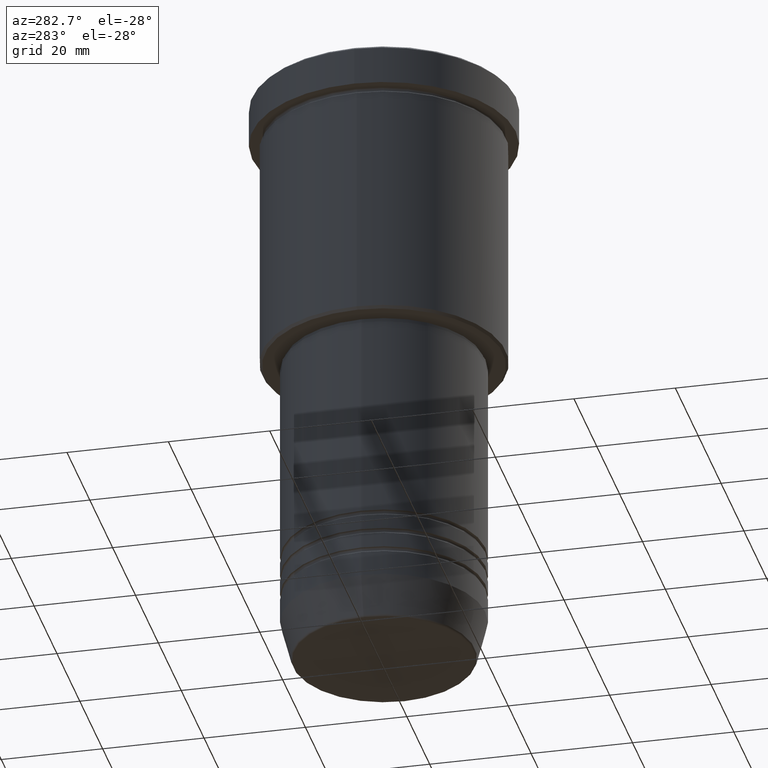
[diagram: clean part render]
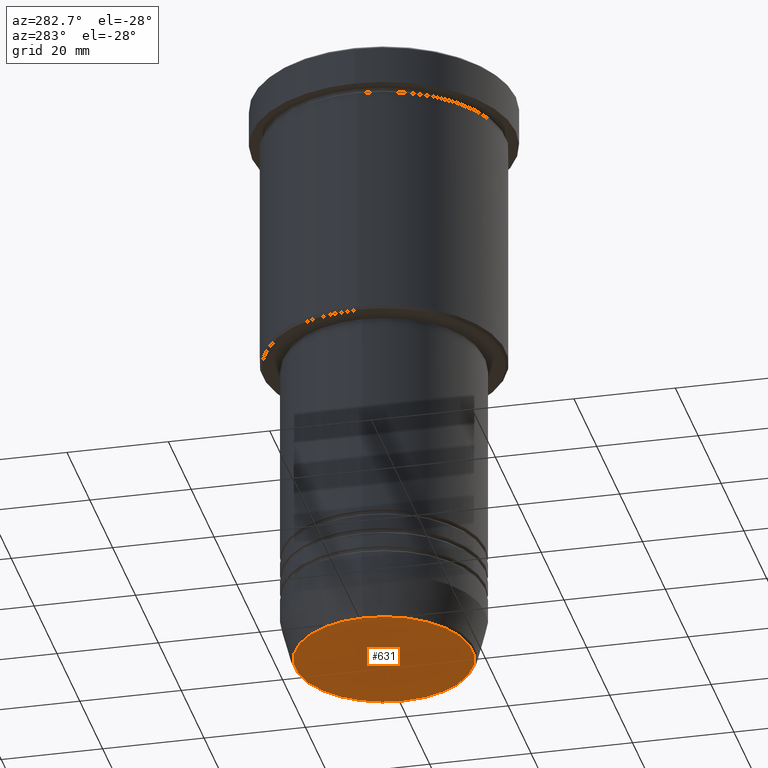
[diagram: same view with one face highlighted and labeled with its STEP entity id]
A machine part, auxiliary view. The second image highlights one B-rep face of the part: STEP entity #631.
In plain terms, the highlighted planar face has unit normal (0, -0, 1).
Its self-contained STEP definition (entity closure, byte-faithful):
#50 = DIRECTION ( 'NONE',  ( 1.000000000000000000, 0.000000000000000000, 0.000000000000000000 ) ) ;
#70 = VERTEX_POINT ( 'NONE', #870 ) ;
#127 = AXIS2_PLACEMENT_3D ( 'NONE', #594, #957, #889 ) ;
#186 = ORIENTED_EDGE ( 'NONE', *, *, #1067, .T. ) ;
#206 = AXIS2_PLACEMENT_3D ( 'NONE', #423, #332, #50 ) ;
#332 = DIRECTION ( 'NONE',  ( 0.000000000000000000, 0.000000000000000000, -1.000000000000000000 ) ) ;
#335 = PLANE ( 'NONE',  #127 ) ;
#347 = DIRECTION ( 'NONE',  ( 0.000000000000000000, 0.000000000000000000, -1.000000000000000000 ) ) ;
#423 = CARTESIAN_POINT ( 'NONE',  ( 0.000000000000000000, 0.000000000000000000, -120.0000000000000000 ) ) ;
#433 = FACE_OUTER_BOUND ( 'NONE', #562, .T. ) ;
#562 = EDGE_LOOP ( 'NONE', ( #186, #1043 ) ) ;
#594 = CARTESIAN_POINT ( 'NONE',  ( 0.000000000000000000, 0.000000000000000000, -120.0000000000000000 ) ) ;
#605 = CARTESIAN_POINT ( 'NONE',  ( -17.47274296656153325, 2.169366823916867714E-15, -120.0000000000000000 ) ) ;
#625 = AXIS2_PLACEMENT_3D ( 'NONE', #1168, #347, #777 ) ;
#631 = ADVANCED_FACE ( 'NONE', ( #433 ), #335, .F. ) ;
#771 = VERTEX_POINT ( 'NONE', #605 ) ;
#777 = DIRECTION ( 'NONE',  ( 1.000000000000000000, 0.000000000000000000, 0.000000000000000000 ) ) ;
#870 = CARTESIAN_POINT ( 'NONE',  ( 17.47274296656153325, 0.000000000000000000, -120.0000000000000000 ) ) ;
#889 = DIRECTION ( 'NONE',  ( 1.000000000000000000, 0.000000000000000000, 0.000000000000000000 ) ) ;
#906 = CIRCLE ( 'NONE', #625, 17.47274296656153325 ) ;
#957 = DIRECTION ( 'NONE',  ( 0.000000000000000000, -0.000000000000000000, 1.000000000000000000 ) ) ;
#984 = CIRCLE ( 'NONE', #206, 17.47274296656153325 ) ;
#1043 = ORIENTED_EDGE ( 'NONE', *, *, #1044, .T. ) ;
#1044 = EDGE_CURVE ( 'NONE', #771, #70, #906, .T. ) ;
#1067 = EDGE_CURVE ( 'NONE', #70, #771, #984, .T. ) ;
#1168 = CARTESIAN_POINT ( 'NONE',  ( 0.000000000000000000, 0.000000000000000000, -120.0000000000000000 ) ) ;